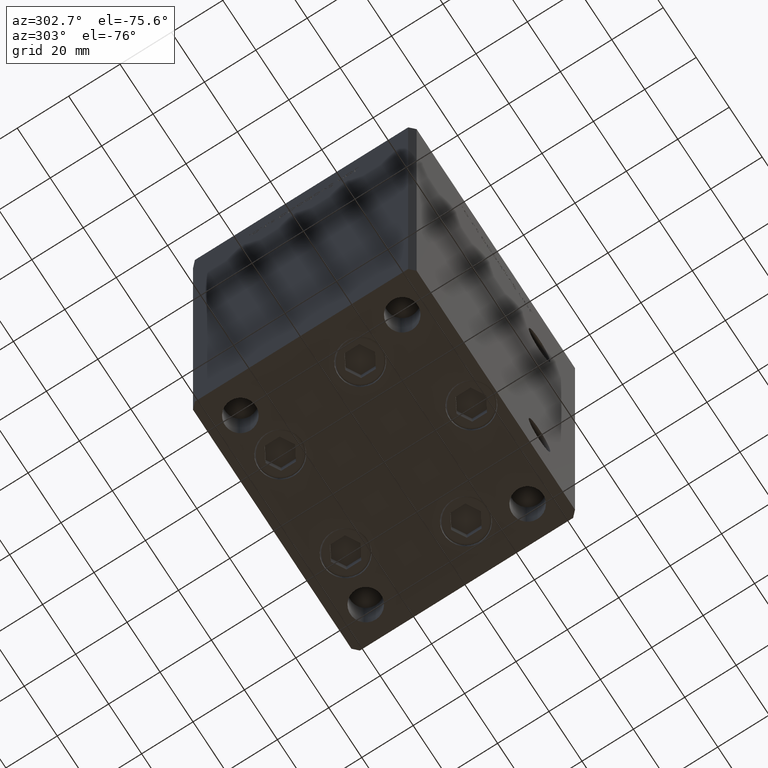
[diagram: clean part render]
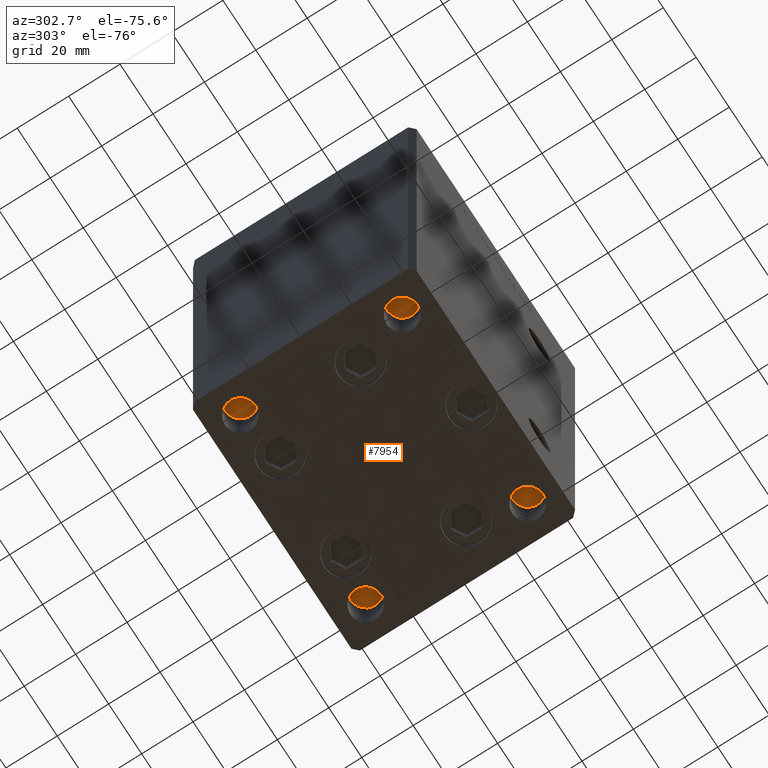
[diagram: same view with one face highlighted and labeled with its STEP entity id]
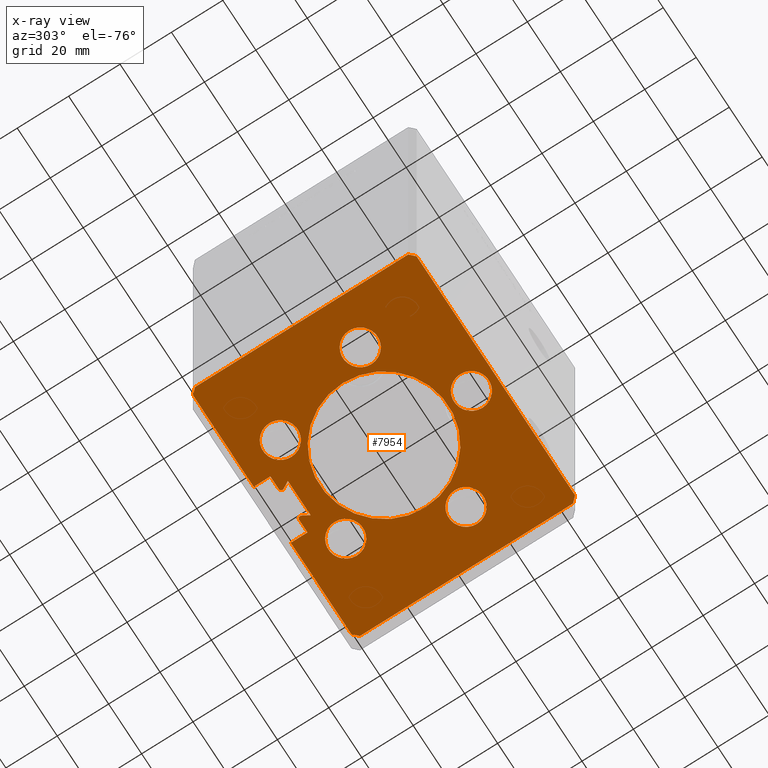
[diagram: x-ray of the same camera — body ghosted, the highlighted face saturated]
A machine part, auxiliary view. The second image highlights one B-rep face of the part: STEP entity #7954.
The next image is the same camera in x-ray: the body ghosted, the highlighted face saturated — about 0% of this face is hidden behind the body in this view.
In plain terms, the highlighted planar face has unit normal (0, 0, -1).
Its self-contained STEP definition (entity closure, byte-faithful):
#469 = ORIENTED_EDGE ( 'NONE', *, *, #29428, .T. ) ;
#566 = CARTESIAN_POINT ( 'NONE',  ( 0.000000000000000000, 0.000000000000000000, 0.000000000000000000 ) ) ;
#737 = DIRECTION ( 'NONE',  ( 0.000000000000000000, 0.000000000000000000, -1.000000000000000000 ) ) ;
#941 = CARTESIAN_POINT ( 'NONE',  ( 26.57068048781373193, 27.62500000000000711, 0.000000000000000000 ) ) ;
#953 = EDGE_LOOP ( 'NONE', ( #46107, #26687 ) ) ;
#1308 = DIRECTION ( 'NONE',  ( -0.7071067811865474617, -0.7071067811865474617, 0.000000000000000000 ) ) ;
#1597 = FACE_OUTER_BOUND ( 'NONE', #38415, .T. ) ;
#1640 = CIRCLE ( 'NONE', #41239, 6.749999999999999112 ) ;
#1860 = DIRECTION ( 'NONE',  ( -1.000000000000000000, 0.000000000000000000, -0.000000000000000000 ) ) ;
#1958 = VECTOR ( 'NONE', #11527, 1000.000000000000000 ) ;
#2123 = FACE_BOUND ( 'NONE', #31834, .T. ) ;
#2321 = DIRECTION ( 'NONE',  ( 0.000000000000000000, 0.000000000000000000, -1.000000000000000000 ) ) ;
#2358 = ORIENTED_EDGE ( 'NONE', *, *, #5647, .F. ) ;
#2368 = LINE ( 'NONE', #30606, #48665 ) ;
#2731 = EDGE_CURVE ( 'NONE', #26519, #12362, #15133, .T. ) ;
#3071 = ORIENTED_EDGE ( 'NONE', *, *, #16748, .T. ) ;
#3483 = ORIENTED_EDGE ( 'NONE', *, *, #40645, .F. ) ;
#3519 = VERTEX_POINT ( 'NONE', #25476 ) ;
#3539 = EDGE_CURVE ( 'NONE', #45781, #51555, #41567, .T. ) ;
#3581 = CARTESIAN_POINT ( 'NONE',  ( 32.05550741379015989, -11.33333333333332682, 0.000000000000000000 ) ) ;
#3591 = ORIENTED_EDGE ( 'NONE', *, *, #49919, .F. ) ;
#4417 = VECTOR ( 'NONE', #11549, 1000.000000000000000 ) ;
#4946 = VERTEX_POINT ( 'NONE', #38793 ) ;
#5266 = EDGE_LOOP ( 'NONE', ( #6536, #28054 ) ) ;
#5361 = VERTEX_POINT ( 'NONE', #46262 ) ;
#5384 = ORIENTED_EDGE ( 'NONE', *, *, #44617, .T. ) ;
#5533 = CIRCLE ( 'NONE', #46001, 6.749999999999999112 ) ;
#5622 = CARTESIAN_POINT ( 'NONE',  ( -25.30550741379015989, -11.33333333333333570, 0.000000000000000000 ) ) ;
#5647 = EDGE_CURVE ( 'NONE', #23827, #44079, #38197, .T. ) ;
#5808 = EDGE_CURVE ( 'NONE', #30634, #5361, #30387, .T. ) ;
#5878 = CARTESIAN_POINT ( 'NONE',  ( -25.00000000000000000, 0.000000000000000000, 0.000000000000000000 ) ) ;
#6022 = ORIENTED_EDGE ( 'NONE', *, *, #43884, .F. ) ;
#6062 = DIRECTION ( 'NONE',  ( 0.7071067811865487940, -0.7071067811865463515, 0.000000000000000000 ) ) ;
#6085 = LINE ( 'NONE', #38553, #33796 ) ;
#6269 = CIRCLE ( 'NONE', #48419, 25.00000000000000000 ) ;
#6442 = VERTEX_POINT ( 'NONE', #7370 ) ;
#6445 = AXIS2_PLACEMENT_3D ( 'NONE', #10651, #31479, #14613 ) ;
#6536 = ORIENTED_EDGE ( 'NONE', *, *, #35038, .F. ) ;
#6696 = VECTOR ( 'NONE', #21518, 1000.000000000000000 ) ;
#6954 = ORIENTED_EDGE ( 'NONE', *, *, #23862, .F. ) ;
#7370 = CARTESIAN_POINT ( 'NONE',  ( -26.57068048781373903, 27.62500000000000355, 0.000000000000000000 ) ) ;
#7736 = CARTESIAN_POINT ( 'NONE',  ( -11.24999999999999822, 43.50000000000000000, 0.000000000000000000 ) ) ;
#7954 = ADVANCED_FACE ( 'NONE', ( #2123, #37755, #34579, #10571, #46196, #1597, #18756 ), #17705, .T. ) ;
#8405 = CARTESIAN_POINT ( 'NONE',  ( 48.00000000000000711, 43.50000000000000000, 0.000000000000000000 ) ) ;
#8471 = VERTEX_POINT ( 'NONE', #24338 ) ;
#8569 = EDGE_CURVE ( 'NONE', #15732, #35817, #6085, .T. ) ;
#8705 = ORIENTED_EDGE ( 'NONE', *, *, #3539, .F. ) ;
#8936 = CARTESIAN_POINT ( 'NONE',  ( 25.00000000000000000, 3.061616997868383043E-15, 0.000000000000000000 ) ) ;
#9517 = LINE ( 'NONE', #24847, #16652 ) ;
#9859 = DIRECTION ( 'NONE',  ( -1.000000000000000000, 0.000000000000000000, 0.000000000000000000 ) ) ;
#10045 = DIRECTION ( 'NONE',  ( 0.000000000000000000, 0.000000000000000000, -1.000000000000000000 ) ) ;
#10571 = FACE_BOUND ( 'NONE', #5266, .T. ) ;
#10651 = CARTESIAN_POINT ( 'NONE',  ( 0.000000000000000000, 0.000000000000000000, 0.000000000000000000 ) ) ;
#10855 = CARTESIAN_POINT ( 'NONE',  ( -11.24999999999999822, 43.50000000000000000, 0.000000000000000000 ) ) ;
#10888 = EDGE_CURVE ( 'NONE', #21381, #28771, #49340, .T. ) ;
#10906 = EDGE_CURVE ( 'NONE', #5361, #37623, #51546, .T. ) ;
#11453 = CARTESIAN_POINT ( 'NONE',  ( -6.876153656360465050, 32.99999999999986500, 0.000000000000000000 ) ) ;
#11527 = DIRECTION ( 'NONE',  ( -3.344045254895050973E-16, -1.000000000000000000, 0.000000000000000000 ) ) ;
#11549 = DIRECTION ( 'NONE',  ( 1.000000000000000000, -0.000000000000000000, -0.000000000000000000 ) ) ;
#11633 = CARTESIAN_POINT ( 'NONE',  ( 6.876153656360465050, 32.99999999999986500, 0.000000000000000000 ) ) ;
#12019 = DIRECTION ( 'NONE',  ( -1.000000000000000000, 0.000000000000000000, 0.000000000000000000 ) ) ;
#12362 = VERTEX_POINT ( 'NONE', #36190 ) ;
#12496 = ORIENTED_EDGE ( 'NONE', *, *, #27626, .T. ) ;
#12684 = DIRECTION ( 'NONE',  ( 1.000000000000000000, -0.000000000000000000, -0.000000000000000000 ) ) ;
#12714 = DIRECTION ( 'NONE',  ( -0.000000000000000000, 0.000000000000000000, 1.000000000000000000 ) ) ;
#12741 = VERTEX_POINT ( 'NONE', #48773 ) ;
#13005 = EDGE_LOOP ( 'NONE', ( #31238, #39665 ) ) ;
#13009 = VECTOR ( 'NONE', #23125, 1000.000000000000000 ) ;
#13265 = AXIS2_PLACEMENT_3D ( 'NONE', #22917, #42973, #35566 ) ;
#13287 = DIRECTION ( 'NONE',  ( -1.000000000000000000, 0.000000000000000000, 0.000000000000000000 ) ) ;
#13981 = DIRECTION ( 'NONE',  ( -0.000000000000000000, -0.000000000000000000, -1.000000000000000000 ) ) ;
#14613 = DIRECTION ( 'NONE',  ( 1.000000000000000000, 0.000000000000000000, 0.000000000000000000 ) ) ;
#14779 = AXIS2_PLACEMENT_3D ( 'NONE', #26370, #50633, #35588 ) ;
#14781 = DIRECTION ( 'NONE',  ( -0.000000000000000000, -0.000000000000000000, -1.000000000000000000 ) ) ;
#15019 = VERTEX_POINT ( 'NONE', #941 ) ;
#15022 = VERTEX_POINT ( 'NONE', #17309 ) ;
#15133 = CIRCLE ( 'NONE', #48014, 6.749999999999999112 ) ;
#15602 = AXIS2_PLACEMENT_3D ( 'NONE', #32071, #48174, #12019 ) ;
#15634 = VECTOR ( 'NONE', #43901, 1000.000000000000114 ) ;
#15659 = DIRECTION ( 'NONE',  ( -1.000000000000000000, 0.000000000000000000, 0.000000000000000000 ) ) ;
#15719 = DIRECTION ( 'NONE',  ( -1.000000000000000000, 0.000000000000000000, 0.000000000000000000 ) ) ;
#15732 = VERTEX_POINT ( 'NONE', #29769 ) ;
#15791 = DIRECTION ( 'NONE',  ( -1.000000000000000000, 0.000000000000000000, 0.000000000000000000 ) ) ;
#15889 = AXIS2_PLACEMENT_3D ( 'NONE', #23391, #36305, #39473 ) ;
#16600 = CARTESIAN_POINT ( 'NONE',  ( -5.375042956467945388, 35.59999999999898534, 0.000000000000000000 ) ) ;
#16652 = VECTOR ( 'NONE', #45935, 1000.000000000000000 ) ;
#16748 = EDGE_CURVE ( 'NONE', #12741, #20979, #47709, .T. ) ;
#16839 = CARTESIAN_POINT ( 'NONE',  ( 50.00000000000001421, 41.49999999999999289, 0.000000000000000000 ) ) ;
#16897 = VECTOR ( 'NONE', #26322, 1000.000000000000114 ) ;
#17265 = CARTESIAN_POINT ( 'NONE',  ( 19.82068048781373548, 27.62500000000000711, 0.000000000000000000 ) ) ;
#17309 = CARTESIAN_POINT ( 'NONE',  ( -11.24999999999999822, 43.50000000000000000, 0.000000000000000000 ) ) ;
#17705 = PLANE ( 'NONE',  #31248 ) ;
#17990 = LINE ( 'NONE', #10855, #48385 ) ;
#18756 = FACE_BOUND ( 'NONE', #30465, .T. ) ;
#18922 = CARTESIAN_POINT ( 'NONE',  ( 25.30550741379015989, -11.33333333333332682, 0.000000000000000000 ) ) ;
#19632 = LINE ( 'NONE', #7736, #34935 ) ;
#20346 = EDGE_LOOP ( 'NONE', ( #6022, #23532 ) ) ;
#20559 = EDGE_CURVE ( 'NONE', #51555, #23827, #20787, .T. ) ;
#20787 = LINE ( 'NONE', #21306, #31470 ) ;
#20800 = CARTESIAN_POINT ( 'NONE',  ( -32.05550741379015989, -11.33333333333333570, 0.000000000000000000 ) ) ;
#20947 = ORIENTED_EDGE ( 'NONE', *, *, #24853, .T. ) ;
#20979 = VERTEX_POINT ( 'NONE', #11633 ) ;
#21306 = CARTESIAN_POINT ( 'NONE',  ( -50.00000000000001421, 41.49999999999999289, 0.000000000000000000 ) ) ;
#21381 = VERTEX_POINT ( 'NONE', #39799 ) ;
#21518 = DIRECTION ( 'NONE',  ( -0.7071067811865487940, -0.7071067811865463515, 0.000000000000000000 ) ) ;
#21840 = CARTESIAN_POINT ( 'NONE',  ( -49.99999999999998579, -41.49999999999999289, 0.000000000000000000 ) ) ;
#22161 = CARTESIAN_POINT ( 'NONE',  ( 49.99999999999998579, -41.49999999999999289, 0.000000000000000000 ) ) ;
#22554 = CARTESIAN_POINT ( 'NONE',  ( -48.00000000000000711, 43.50000000000000000, 0.000000000000000000 ) ) ;
#22679 = ORIENTED_EDGE ( 'NONE', *, *, #36026, .T. ) ;
#22917 = CARTESIAN_POINT ( 'NONE',  ( 4.163799117101000559E-15, -34.00000000000000000, 0.000000000000000000 ) ) ;
#23125 = DIRECTION ( 'NONE',  ( 0.000000000000000000, 1.000000000000000000, 0.000000000000000000 ) ) ;
#23391 = CARTESIAN_POINT ( 'NONE',  ( 19.82068048781373548, 27.62500000000000711, 0.000000000000000000 ) ) ;
#23398 = ORIENTED_EDGE ( 'NONE', *, *, #50659, .T. ) ;
#23532 = ORIENTED_EDGE ( 'NONE', *, *, #32559, .F. ) ;
#23827 = VERTEX_POINT ( 'NONE', #37777 ) ;
#23862 = EDGE_CURVE ( 'NONE', #15022, #45781, #17990, .T. ) ;
#24037 = CIRCLE ( 'NONE', #15602, 6.749999999999999112 ) ;
#24221 = AXIS2_PLACEMENT_3D ( 'NONE', #20800, #737, #15791 ) ;
#24318 = ORIENTED_EDGE ( 'NONE', *, *, #43624, .T. ) ;
#24338 = CARTESIAN_POINT ( 'NONE',  ( -11.24999999999999822, 36.99999999999999289, 0.000000000000000000 ) ) ;
#24847 = CARTESIAN_POINT ( 'NONE',  ( -47.99999999999998579, -43.50000000000000000, 0.000000000000000000 ) ) ;
#24853 = EDGE_CURVE ( 'NONE', #45310, #40902, #6269, .T. ) ;
#25090 = CIRCLE ( 'NONE', #24221, 6.749999999999999112 ) ;
#25179 = ORIENTED_EDGE ( 'NONE', *, *, #36791, .T. ) ;
#25476 = CARTESIAN_POINT ( 'NONE',  ( 5.375042956467945388, 35.59999999999898534, 0.000000000000000000 ) ) ;
#25540 = CARTESIAN_POINT ( 'NONE',  ( 11.24999999999999822, 43.50000000000000000, 0.000000000000000000 ) ) ;
#26322 = DIRECTION ( 'NONE',  ( 0.7071067811865474617, -0.7071067811865474617, 0.000000000000000000 ) ) ;
#26370 = CARTESIAN_POINT ( 'NONE',  ( -19.82068048781374259, 27.62500000000000355, 0.000000000000000000 ) ) ;
#26519 = VERTEX_POINT ( 'NONE', #18922 ) ;
#26687 = ORIENTED_EDGE ( 'NONE', *, *, #47767, .F. ) ;
#27077 = CARTESIAN_POINT ( 'NONE',  ( 11.24999999999999822, 36.99999999999999289, 0.000000000000000000 ) ) ;
#27141 = CARTESIAN_POINT ( 'NONE',  ( -6.749999999999994671, -34.00000000000000000, 0.000000000000000000 ) ) ;
#27626 = EDGE_CURVE ( 'NONE', #43846, #21381, #31580, .T. ) ;
#28001 = EDGE_CURVE ( 'NONE', #3519, #15732, #34854, .T. ) ;
#28054 = ORIENTED_EDGE ( 'NONE', *, *, #39261, .F. ) ;
#28063 = LINE ( 'NONE', #11453, #15634 ) ;
#28115 = ORIENTED_EDGE ( 'NONE', *, *, #20559, .F. ) ;
#28199 = VERTEX_POINT ( 'NONE', #8405 ) ;
#28218 = DIRECTION ( 'NONE',  ( -0.000000000000000000, -1.000000000000000000, -0.000000000000000000 ) ) ;
#28263 = LINE ( 'NONE', #36439, #36017 ) ;
#28340 = CIRCLE ( 'NONE', #6445, 25.00000000000000000 ) ;
#28449 = CIRCLE ( 'NONE', #40225, 6.749999999999999112 ) ;
#28771 = VERTEX_POINT ( 'NONE', #45221 ) ;
#28808 = AXIS2_PLACEMENT_3D ( 'NONE', #30066, #13981, #41684 ) ;
#28962 = VERTEX_POINT ( 'NONE', #5622 ) ;
#29066 = DIRECTION ( 'NONE',  ( 1.000000000000000000, 0.000000000000000000, 0.000000000000000000 ) ) ;
#29329 = LINE ( 'NONE', #46205, #48557 ) ;
#29400 = DIRECTION ( 'NONE',  ( 0.000000000000000000, 0.000000000000000000, -1.000000000000000000 ) ) ;
#29428 = EDGE_CURVE ( 'NONE', #35817, #48611, #47139, .T. ) ;
#29519 = AXIS2_PLACEMENT_3D ( 'NONE', #45265, #41043, #48703 ) ;
#29697 = VERTEX_POINT ( 'NONE', #30962 ) ;
#29769 = CARTESIAN_POINT ( 'NONE',  ( 6.183333333333997928, 36.99999999999999289, 0.000000000000000000 ) ) ;
#29854 = DIRECTION ( 'NONE',  ( -0.4999999999999996114, 0.8660254037844388186, 0.000000000000000000 ) ) ;
#29865 = VERTEX_POINT ( 'NONE', #27141 ) ;
#30066 = CARTESIAN_POINT ( 'NONE',  ( -6.183333333333997928, 36.06666666666598786, 0.000000000000000000 ) ) ;
#30294 = DIRECTION ( 'NONE',  ( -1.000000000000000000, 0.000000000000000000, 0.000000000000000000 ) ) ;
#30387 = CIRCLE ( 'NONE', #29519, 0.9333333333340008142 ) ;
#30465 = EDGE_LOOP ( 'NONE', ( #20947, #25179 ) ) ;
#30606 = CARTESIAN_POINT ( 'NONE',  ( 48.00000000000000711, 43.50000000000000000, 0.000000000000000000 ) ) ;
#30634 = VERTEX_POINT ( 'NONE', #32528 ) ;
#30962 = CARTESIAN_POINT ( 'NONE',  ( 13.07068048781373548, 27.62500000000000711, 0.000000000000000000 ) ) ;
#31238 = ORIENTED_EDGE ( 'NONE', *, *, #2731, .F. ) ;
#31248 = AXIS2_PLACEMENT_3D ( 'NONE', #38804, #10045, #1860 ) ;
#31436 = ORIENTED_EDGE ( 'NONE', *, *, #28001, .T. ) ;
#31470 = VECTOR ( 'NONE', #48752, 1000.000000000000000 ) ;
#31479 = DIRECTION ( 'NONE',  ( -0.000000000000000000, 0.000000000000000000, 1.000000000000000000 ) ) ;
#31574 = EDGE_CURVE ( 'NONE', #28199, #48611, #19632, .T. ) ;
#31580 = LINE ( 'NONE', #39499, #1958 ) ;
#31834 = EDGE_LOOP ( 'NONE', ( #45618, #3591 ) ) ;
#32071 = CARTESIAN_POINT ( 'NONE',  ( -32.05550741379015989, -11.33333333333333570, 0.000000000000000000 ) ) ;
#32528 = CARTESIAN_POINT ( 'NONE',  ( -6.183333333333997928, 36.99999999999999289, 0.000000000000000000 ) ) ;
#32559 = EDGE_CURVE ( 'NONE', #28962, #43356, #24037, .T. ) ;
#32768 = ORIENTED_EDGE ( 'NONE', *, *, #5808, .T. ) ;
#32967 = EDGE_CURVE ( 'NONE', #6442, #4946, #40904, .T. ) ;
#33071 = DIRECTION ( 'NONE',  ( 0.000000000000000000, 0.000000000000000000, -1.000000000000000000 ) ) ;
#33754 = EDGE_CURVE ( 'NONE', #37623, #12741, #28063, .T. ) ;
#33796 = VECTOR ( 'NONE', #41721, 1000.000000000000000 ) ;
#34071 = DIRECTION ( 'NONE',  ( -1.000000000000000000, 0.000000000000000000, 0.000000000000000000 ) ) ;
#34579 = FACE_BOUND ( 'NONE', #13005, .T. ) ;
#34854 = CIRCLE ( 'NONE', #43300, 0.9333333333340008142 ) ;
#34935 = VECTOR ( 'NONE', #15659, 1000.000000000000000 ) ;
#35038 = EDGE_CURVE ( 'NONE', #29865, #45933, #5533, .T. ) ;
#35265 = CIRCLE ( 'NONE', #15889, 6.749999999999999112 ) ;
#35414 = DIRECTION ( 'NONE',  ( -1.000000000000000000, 0.000000000000000000, 0.000000000000000000 ) ) ;
#35566 = DIRECTION ( 'NONE',  ( -1.000000000000000000, 0.000000000000000000, 0.000000000000000000 ) ) ;
#35588 = DIRECTION ( 'NONE',  ( -1.000000000000000000, 0.000000000000000000, 0.000000000000000000 ) ) ;
#35817 = VERTEX_POINT ( 'NONE', #46795 ) ;
#36017 = VECTOR ( 'NONE', #12684, 1000.000000000000000 ) ;
#36026 = EDGE_CURVE ( 'NONE', #20979, #3519, #29329, .T. ) ;
#36190 = CARTESIAN_POINT ( 'NONE',  ( 38.80550741379015989, -11.33333333333332682, 0.000000000000000000 ) ) ;
#36305 = DIRECTION ( 'NONE',  ( 0.000000000000000000, 0.000000000000000000, -1.000000000000000000 ) ) ;
#36439 = CARTESIAN_POINT ( 'NONE',  ( -6.183333333333997928, 36.99999999999999289, 0.000000000000000000 ) ) ;
#36510 = CARTESIAN_POINT ( 'NONE',  ( -38.80550741379015989, -11.33333333333333570, 0.000000000000000000 ) ) ;
#36791 = EDGE_CURVE ( 'NONE', #40902, #45310, #28340, .T. ) ;
#37623 = VERTEX_POINT ( 'NONE', #16600 ) ;
#37755 = FACE_BOUND ( 'NONE', #953, .T. ) ;
#37777 = CARTESIAN_POINT ( 'NONE',  ( -49.99999999999998579, -41.49999999999999289, 0.000000000000000000 ) ) ;
#37866 = CARTESIAN_POINT ( 'NONE',  ( -48.00000000000000711, 43.50000000000000000, 0.000000000000000000 ) ) ;
#38197 = LINE ( 'NONE', #21840, #16897 ) ;
#38415 = EDGE_LOOP ( 'NONE', ( #23398, #24318, #32768, #39755, #47932, #3071, #22679, #31436, #42880, #469, #49946, #5384, #12496, #48417, #3483, #2358, #28115, #8705, #6954 ) ) ;
#38553 = CARTESIAN_POINT ( 'NONE',  ( 6.183333333333997928, 36.99999999999999289, 0.000000000000000000 ) ) ;
#38793 = CARTESIAN_POINT ( 'NONE',  ( -13.07068048781374081, 27.62500000000000355, 0.000000000000000000 ) ) ;
#38804 = CARTESIAN_POINT ( 'NONE',  ( 0.000000000000000000, 0.000000000000000000, 0.000000000000000000 ) ) ;
#38853 = CARTESIAN_POINT ( 'NONE',  ( 32.05550741379015989, -11.33333333333332682, 0.000000000000000000 ) ) ;
#39052 = LINE ( 'NONE', #44312, #39578 ) ;
#39261 = EDGE_CURVE ( 'NONE', #45933, #29865, #51184, .T. ) ;
#39473 = DIRECTION ( 'NONE',  ( -1.000000000000000000, 0.000000000000000000, 0.000000000000000000 ) ) ;
#39499 = CARTESIAN_POINT ( 'NONE',  ( 50.00000000000001421, 41.49999999999999289, 0.000000000000000000 ) ) ;
#39578 = VECTOR ( 'NONE', #28218, 1000.000000000000000 ) ;
#39616 = EDGE_CURVE ( 'NONE', #29697, #15019, #28449, .T. ) ;
#39665 = ORIENTED_EDGE ( 'NONE', *, *, #49398, .F. ) ;
#39755 = ORIENTED_EDGE ( 'NONE', *, *, #10906, .T. ) ;
#39799 = CARTESIAN_POINT ( 'NONE',  ( 49.99999999999998579, -41.49999999999999289, 0.000000000000000000 ) ) ;
#40011 = CARTESIAN_POINT ( 'NONE',  ( -47.99999999999998579, -43.50000000000000000, 0.000000000000000000 ) ) ;
#40225 = AXIS2_PLACEMENT_3D ( 'NONE', #17265, #29400, #9859 ) ;
#40645 = EDGE_CURVE ( 'NONE', #44079, #28771, #9517, .T. ) ;
#40902 = VERTEX_POINT ( 'NONE', #8936 ) ;
#40904 = CIRCLE ( 'NONE', #14779, 6.749999999999999112 ) ;
#41043 = DIRECTION ( 'NONE',  ( -0.000000000000000000, -0.000000000000000000, -1.000000000000000000 ) ) ;
#41239 = AXIS2_PLACEMENT_3D ( 'NONE', #48907, #33071, #13287 ) ;
#41567 = LINE ( 'NONE', #37866, #6696 ) ;
#41684 = DIRECTION ( 'NONE',  ( 1.000000000000000000, 0.000000000000000000, 0.000000000000000000 ) ) ;
#41721 = DIRECTION ( 'NONE',  ( 1.000000000000000000, 0.000000000000000000, 0.000000000000000000 ) ) ;
#41839 = CARTESIAN_POINT ( 'NONE',  ( -50.00000000000001421, 41.49999999999999289, 0.000000000000000000 ) ) ;
#41908 = CARTESIAN_POINT ( 'NONE',  ( 4.163799117101000559E-15, -34.00000000000000000, 0.000000000000000000 ) ) ;
#42880 = ORIENTED_EDGE ( 'NONE', *, *, #8569, .T. ) ;
#42973 = DIRECTION ( 'NONE',  ( 0.000000000000000000, 0.000000000000000000, -1.000000000000000000 ) ) ;
#43300 = AXIS2_PLACEMENT_3D ( 'NONE', #50921, #14781, #46972 ) ;
#43356 = VERTEX_POINT ( 'NONE', #36510 ) ;
#43624 = EDGE_CURVE ( 'NONE', #8471, #30634, #28263, .T. ) ;
#43846 = VERTEX_POINT ( 'NONE', #16839 ) ;
#43884 = EDGE_CURVE ( 'NONE', #43356, #28962, #25090, .T. ) ;
#43901 = DIRECTION ( 'NONE',  ( -0.4999999999999996114, -0.8660254037844388186, -0.000000000000000000 ) ) ;
#44079 = VERTEX_POINT ( 'NONE', #40011 ) ;
#44269 = CARTESIAN_POINT ( 'NONE',  ( 6.876153656360465050, 32.99999999999986500, 0.000000000000000000 ) ) ;
#44312 = CARTESIAN_POINT ( 'NONE',  ( -11.24999999999999822, 36.99999999999999289, 0.000000000000000000 ) ) ;
#44600 = AXIS2_PLACEMENT_3D ( 'NONE', #38853, #47810, #35414 ) ;
#44617 = EDGE_CURVE ( 'NONE', #28199, #43846, #2368, .T. ) ;
#44810 = VECTOR ( 'NONE', #1308, 1000.000000000000114 ) ;
#45221 = CARTESIAN_POINT ( 'NONE',  ( 47.99999999999998579, -43.50000000000000000, 0.000000000000000000 ) ) ;
#45265 = CARTESIAN_POINT ( 'NONE',  ( -6.183333333333997928, 36.06666666666598786, 0.000000000000000000 ) ) ;
#45310 = VERTEX_POINT ( 'NONE', #5878 ) ;
#45618 = ORIENTED_EDGE ( 'NONE', *, *, #32967, .F. ) ;
#45781 = VERTEX_POINT ( 'NONE', #22554 ) ;
#45933 = VERTEX_POINT ( 'NONE', #48988 ) ;
#45935 = DIRECTION ( 'NONE',  ( 1.000000000000000000, 0.000000000000000000, 0.000000000000000000 ) ) ;
#46001 = AXIS2_PLACEMENT_3D ( 'NONE', #41908, #2321, #30294 ) ;
#46107 = ORIENTED_EDGE ( 'NONE', *, *, #39616, .F. ) ;
#46196 = FACE_BOUND ( 'NONE', #20346, .T. ) ;
#46205 = CARTESIAN_POINT ( 'NONE',  ( 6.876153656360465050, 32.99999999999986500, 0.000000000000000000 ) ) ;
#46262 = CARTESIAN_POINT ( 'NONE',  ( -5.249999999999996447, 36.06666666666598786, 0.000000000000000000 ) ) ;
#46795 = CARTESIAN_POINT ( 'NONE',  ( 11.24999999999999822, 36.99999999999999289, 0.000000000000000000 ) ) ;
#46972 = DIRECTION ( 'NONE',  ( 1.000000000000000000, 0.000000000000000000, 0.000000000000000000 ) ) ;
#47139 = LINE ( 'NONE', #27077, #13009 ) ;
#47709 = LINE ( 'NONE', #44269, #4417 ) ;
#47767 = EDGE_CURVE ( 'NONE', #15019, #29697, #35265, .T. ) ;
#47810 = DIRECTION ( 'NONE',  ( 0.000000000000000000, 0.000000000000000000, -1.000000000000000000 ) ) ;
#47932 = ORIENTED_EDGE ( 'NONE', *, *, #33754, .T. ) ;
#47987 = CIRCLE ( 'NONE', #44600, 6.749999999999999112 ) ;
#48014 = AXIS2_PLACEMENT_3D ( 'NONE', #3581, #51858, #15719 ) ;
#48174 = DIRECTION ( 'NONE',  ( 0.000000000000000000, 0.000000000000000000, -1.000000000000000000 ) ) ;
#48385 = VECTOR ( 'NONE', #34071, 1000.000000000000000 ) ;
#48417 = ORIENTED_EDGE ( 'NONE', *, *, #10888, .T. ) ;
#48419 = AXIS2_PLACEMENT_3D ( 'NONE', #566, #12714, #29066 ) ;
#48557 = VECTOR ( 'NONE', #29854, 1000.000000000000114 ) ;
#48611 = VERTEX_POINT ( 'NONE', #25540 ) ;
#48665 = VECTOR ( 'NONE', #6062, 1000.000000000000000 ) ;
#48703 = DIRECTION ( 'NONE',  ( 1.000000000000000000, 0.000000000000000000, 0.000000000000000000 ) ) ;
#48752 = DIRECTION ( 'NONE',  ( 3.344045254895050973E-16, -1.000000000000000000, 0.000000000000000000 ) ) ;
#48773 = CARTESIAN_POINT ( 'NONE',  ( -6.876153656360465050, 32.99999999999986500, 0.000000000000000000 ) ) ;
#48907 = CARTESIAN_POINT ( 'NONE',  ( -19.82068048781374259, 27.62500000000000355, 0.000000000000000000 ) ) ;
#48988 = CARTESIAN_POINT ( 'NONE',  ( 6.750000000000003553, -34.00000000000000000, 0.000000000000000000 ) ) ;
#49340 = LINE ( 'NONE', #22161, #44810 ) ;
#49398 = EDGE_CURVE ( 'NONE', #12362, #26519, #47987, .T. ) ;
#49919 = EDGE_CURVE ( 'NONE', #4946, #6442, #1640, .T. ) ;
#49946 = ORIENTED_EDGE ( 'NONE', *, *, #31574, .F. ) ;
#50633 = DIRECTION ( 'NONE',  ( 0.000000000000000000, 0.000000000000000000, -1.000000000000000000 ) ) ;
#50659 = EDGE_CURVE ( 'NONE', #15022, #8471, #39052, .T. ) ;
#50921 = CARTESIAN_POINT ( 'NONE',  ( 6.183333333333997928, 36.06666666666598786, 0.000000000000000000 ) ) ;
#51184 = CIRCLE ( 'NONE', #13265, 6.749999999999999112 ) ;
#51546 = CIRCLE ( 'NONE', #28808, 0.9333333333340008142 ) ;
#51555 = VERTEX_POINT ( 'NONE', #41839 ) ;
#51858 = DIRECTION ( 'NONE',  ( 0.000000000000000000, 0.000000000000000000, -1.000000000000000000 ) ) ;